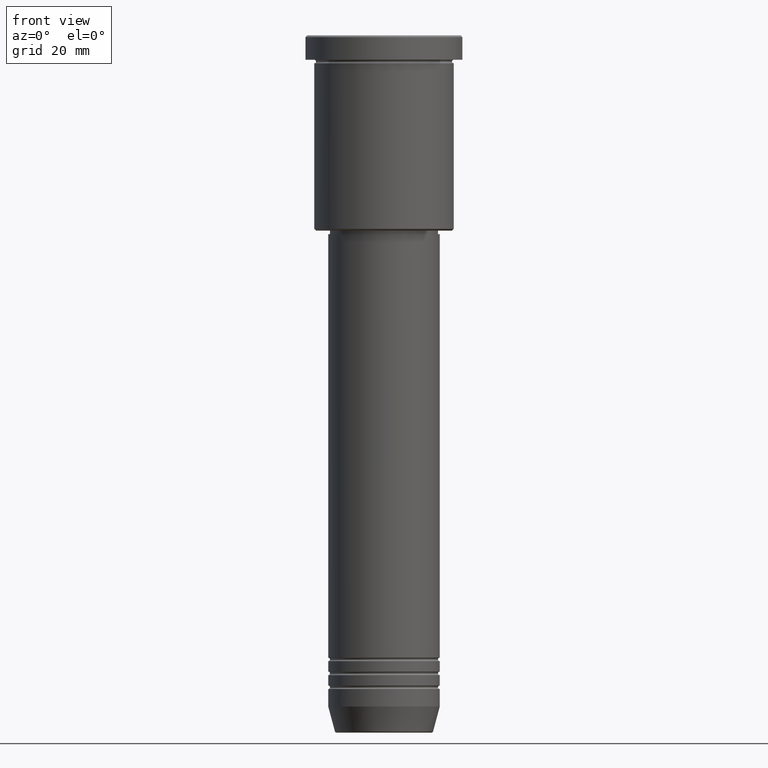
[diagram: clean part render]
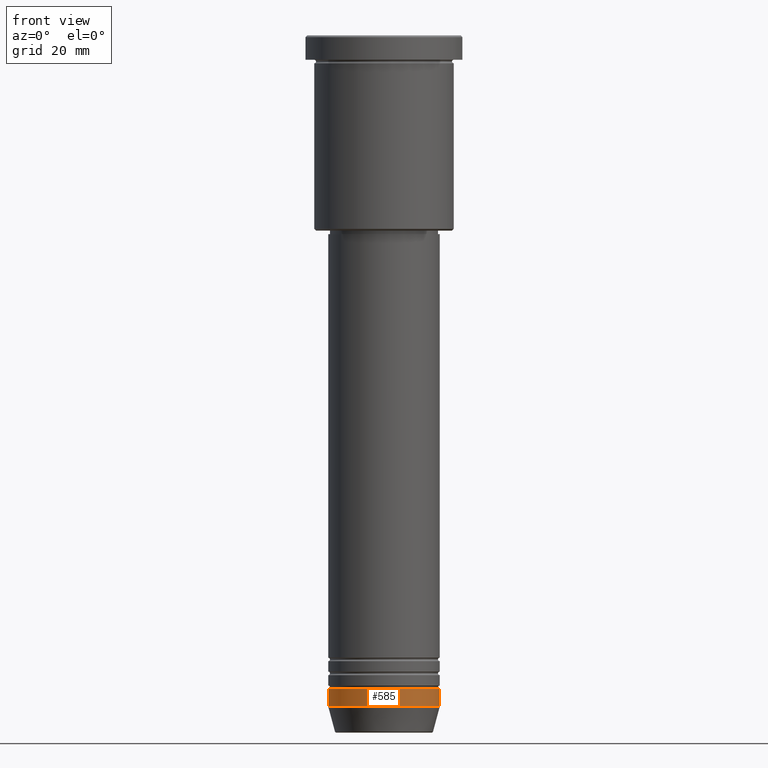
[diagram: same view with one face highlighted and labeled with its STEP entity id]
A machine part, front view. The second image highlights one B-rep face of the part: STEP entity #585.
In plain terms, the highlighted cylindrical surface (partial cylindrical patch) has radius 16 mm, axis along (-0, -0, 1).
Its self-contained STEP definition (entity closure, byte-faithful):
#44 = CARTESIAN_POINT ( 'NONE',  ( 16.00000000000000000, 0.000000000000000000, 0.000000000000000000 ) ) ;
#167 = DIRECTION ( 'NONE',  ( 1.000000000000000000, 0.000000000000000000, 0.000000000000000000 ) ) ;
#170 = VECTOR ( 'NONE', #199, 1000.000000000000000 ) ;
#198 = DIRECTION ( 'NONE',  ( -0.000000000000000000, -0.000000000000000000, 1.000000000000000000 ) ) ;
#199 = DIRECTION ( 'NONE',  ( -0.000000000000000000, -0.000000000000000000, 1.000000000000000000 ) ) ;
#201 = EDGE_LOOP ( 'NONE', ( #1032, #835, #202, #846 ) ) ;
#202 = ORIENTED_EDGE ( 'NONE', *, *, #359, .T. ) ;
#208 = VECTOR ( 'NONE', #314, 1000.000000000000000 ) ;
#212 = AXIS2_PLACEMENT_3D ( 'NONE', #786, #976, #167 ) ;
#259 = CARTESIAN_POINT ( 'NONE',  ( -16.00000000000000000, 1.959434878635765131E-15, -187.5000000000000284 ) ) ;
#264 = EDGE_CURVE ( 'NONE', #310, #1099, #1008, .T. ) ;
#268 = CARTESIAN_POINT ( 'NONE',  ( 16.00000000000000000, 0.000000000000000000, -187.5000000000000284 ) ) ;
#310 = VERTEX_POINT ( 'NONE', #471 ) ;
#314 = DIRECTION ( 'NONE',  ( -0.000000000000000000, -0.000000000000000000, 1.000000000000000000 ) ) ;
#328 = CARTESIAN_POINT ( 'NONE',  ( 0.000000000000000000, 0.000000000000000000, -192.5000000000000284 ) ) ;
#359 = EDGE_CURVE ( 'NONE', #658, #1014, #782, .T. ) ;
#456 = CIRCLE ( 'NONE', #212, 16.00000000000000000 ) ;
#471 = CARTESIAN_POINT ( 'NONE',  ( -16.00000000000000000, 1.959434878635765131E-15, -192.5000000000000284 ) ) ;
#503 = DIRECTION ( 'NONE',  ( -0.000000000000000000, -0.000000000000000000, 1.000000000000000000 ) ) ;
#551 = AXIS2_PLACEMENT_3D ( 'NONE', #328, #503, #804 ) ;
#585 = ADVANCED_FACE ( 'NONE', ( #622 ), #995, .T. ) ;
#622 = FACE_OUTER_BOUND ( 'NONE', #201, .T. ) ;
#658 = VERTEX_POINT ( 'NONE', #1106 ) ;
#690 = CIRCLE ( 'NONE', #551, 16.00000000000000000 ) ;
#743 = CARTESIAN_POINT ( 'NONE',  ( 0.000000000000000000, 0.000000000000000000, 0.000000000000000000 ) ) ;
#766 = AXIS2_PLACEMENT_3D ( 'NONE', #743, #198, #1182 ) ;
#782 = LINE ( 'NONE', #44, #208 ) ;
#786 = CARTESIAN_POINT ( 'NONE',  ( 0.000000000000000000, 0.000000000000000000, -187.5000000000000284 ) ) ;
#804 = DIRECTION ( 'NONE',  ( 1.000000000000000000, 0.000000000000000000, 0.000000000000000000 ) ) ;
#835 = ORIENTED_EDGE ( 'NONE', *, *, #930, .T. ) ;
#846 = ORIENTED_EDGE ( 'NONE', *, *, #898, .F. ) ;
#898 = EDGE_CURVE ( 'NONE', #1099, #1014, #456, .T. ) ;
#930 = EDGE_CURVE ( 'NONE', #310, #658, #690, .T. ) ;
#976 = DIRECTION ( 'NONE',  ( -0.000000000000000000, -0.000000000000000000, 1.000000000000000000 ) ) ;
#995 = CYLINDRICAL_SURFACE ( 'NONE', #766, 16.00000000000000000 ) ;
#1008 = LINE ( 'NONE', #1102, #170 ) ;
#1014 = VERTEX_POINT ( 'NONE', #268 ) ;
#1032 = ORIENTED_EDGE ( 'NONE', *, *, #264, .F. ) ;
#1099 = VERTEX_POINT ( 'NONE', #259 ) ;
#1102 = CARTESIAN_POINT ( 'NONE',  ( -16.00000000000000000, 1.959434878635765131E-15, 0.000000000000000000 ) ) ;
#1106 = CARTESIAN_POINT ( 'NONE',  ( 16.00000000000000000, 0.000000000000000000, -192.5000000000000284 ) ) ;
#1182 = DIRECTION ( 'NONE',  ( 1.000000000000000000, 0.000000000000000000, 0.000000000000000000 ) ) ;